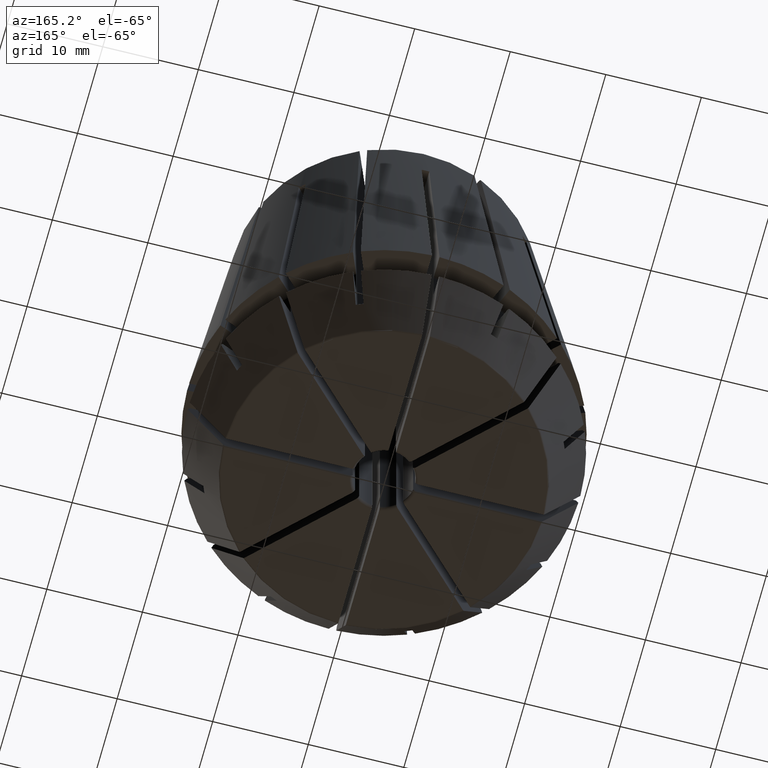
[diagram: clean part render]
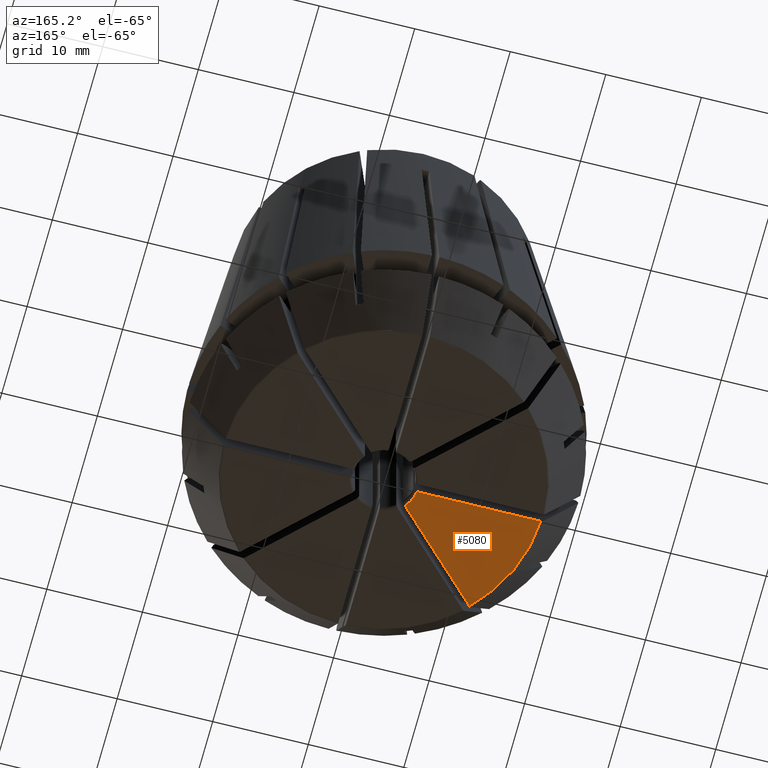
[diagram: same view with one face highlighted and labeled with its STEP entity id]
A machine part, auxiliary view. The second image highlights one B-rep face of the part: STEP entity #5080.
In plain terms, the highlighted planar face has unit normal (0, 0, -1).
Its self-contained STEP definition (entity closure, byte-faithful):
#91=PLANE('',#5594);
#186=LINE('',#7891,#482);
#352=LINE('',#8998,#648);
#482=VECTOR('',#6123,1000.);
#648=VECTOR('',#6725,1000.);
#827=CIRCLE('',#5208,16.5142105483752);
#833=CIRCLE('',#5217,3.575);
#2231=ORIENTED_EDGE('',*,*,#2744,.F.);
#2232=ORIENTED_EDGE('',*,*,#2953,.T.);
#2233=ORIENTED_EDGE('',*,*,#2753,.F.);
#2234=ORIENTED_EDGE('',*,*,#3341,.F.);
#2744=EDGE_CURVE('',#3550,#3551,#827,.T.);
#2753=EDGE_CURVE('',#3558,#3559,#833,.T.);
#2953=EDGE_CURVE('',#3550,#3559,#186,.T.);
#3341=EDGE_CURVE('',#3551,#3558,#352,.T.);
#3550=VERTEX_POINT('',#7259);
#3551=VERTEX_POINT('',#7261);
#3558=VERTEX_POINT('',#7283);
#3559=VERTEX_POINT('',#7284);
#4464=EDGE_LOOP('',(#2231,#2232,#2233,#2234));
#4736=FACE_BOUND('',#4464,.T.);
#5080=ADVANCED_FACE('',(#4736),#91,.T.);
#5208=AXIS2_PLACEMENT_3D('',#7260,#5795,#5796);
#5217=AXIS2_PLACEMENT_3D('',#7282,#5815,#5816);
#5594=AXIS2_PLACEMENT_3D('',#9276,#6849,#6850);
#5795=DIRECTION('',(0.,0.,1.));
#5796=DIRECTION('',(1.,0.,0.));
#5815=DIRECTION('',(0.,0.,-1.));
#5816=DIRECTION('',(-1.,0.,0.));
#6123=DIRECTION('',(1.,1.83697019872103E-16,0.));
#6725=DIRECTION('',(0.707106781186547,0.707106781186548,0.));
#6849=DIRECTION('',(0.,0.,-1.));
#6850=DIRECTION('',(-1.,0.,0.));
#7259=CARTESIAN_POINT('',(-16.5093655249397,-0.400000000000002,0.200000000000003));
#7260=CARTESIAN_POINT('',(0.,0.,0.200000000000006));
#7261=CARTESIAN_POINT('',(-11.9567270282469,-11.3910416032977,0.200000000000003));
#7282=CARTESIAN_POINT('',(0.,0.,0.2));
#7283=CARTESIAN_POINT('',(-2.79487625126334,-2.2291908263141,0.2));
#7284=CARTESIAN_POINT('',(-3.55255189969127,-0.4,0.2));
#7891=CARTESIAN_POINT('',(3.10709007122581E-15,-0.4,0.2));
#8998=CARTESIAN_POINT('',(7.97426256171299,8.53994798666224,0.2));
#9276=CARTESIAN_POINT('',(0.,16.5142105483752,0.2));